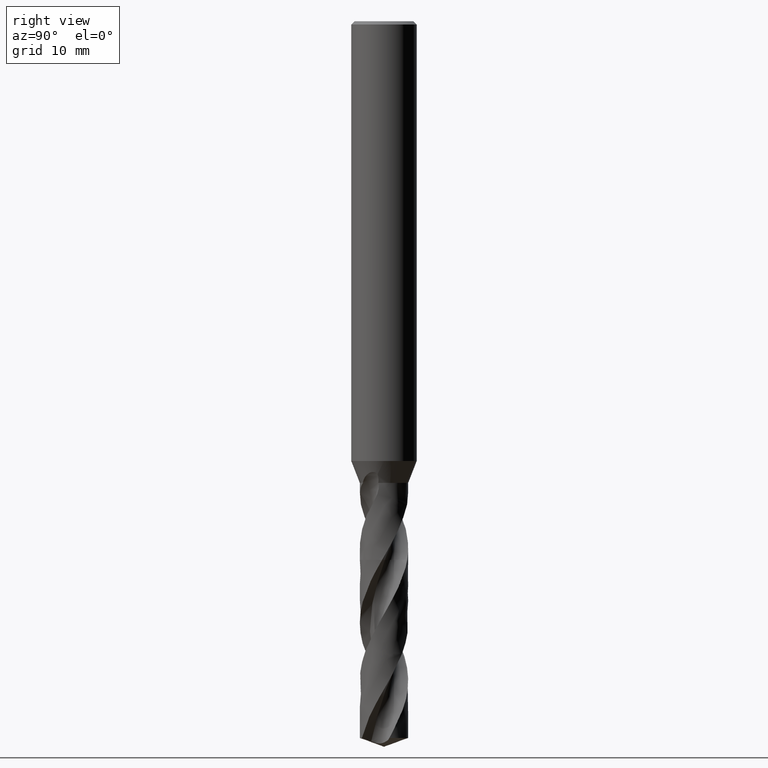
[diagram: clean part render]
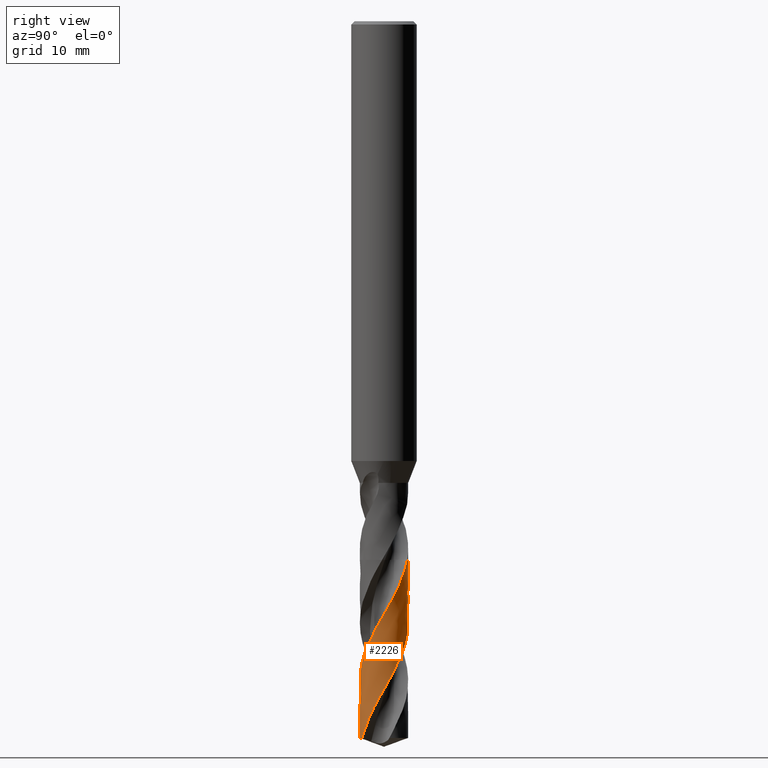
[diagram: same view with one face highlighted and labeled with its STEP entity id]
A machine part, right view. The second image highlights one B-rep face of the part: STEP entity #2226.
In plain terms, the highlighted face is a freeform B-spline surface patch.
Its self-contained STEP definition (entity closure, byte-faithful):
#1730 = EDGE_CURVE('', #1731, #1733, #1735, .T.);
#1731 = VERTEX_POINT('', #1732);
#1732 = CARTESIAN_POINT('', (-2.19297682412459, 0.175649221041361, -49.));
#1733 = VERTEX_POINT('', #1734);
#1734 = CARTESIAN_POINT('', (0.609180016935101, 2.11397722479855, -49.));
#1735 = CIRCLE('', #1736, 2.2);
#1736 = AXIS2_PLACEMENT_3D('', #1737, #1738, #1739);
#1737 = CARTESIAN_POINT('', (1.83720573376078E-31, 3.00038465791102E-15, -49.));
#1738 = DIRECTION('', (3.74939945665464E-33, 6.12323399573677E-17, -1.));
#1739 = DIRECTION('', (-1., 6.12323399573677E-17, 0.));
#1917 = EDGE_CURVE('', #1918, #1731, #1920, .T.);
#1918 = VERTEX_POINT('', #1919);
#1919 = CARTESIAN_POINT('', (0.903567698616241, -2.00588270195875, -65.1992654846144));
#1920 = B_SPLINE_CURVE_WITH_KNOTS('', 3, (#1921, #1922, #1923, #1924, #1925, #1926, #1927, #1928, #1929, #1930, #1931, #1932, #1933, #1934, #1935, #1936, #1937, #1938, #1939, #1940, #1941, #1942, #1943, #1944, #1945, #1946, #1947, #1948, #1949, #1950, #1951, #1952, #1953, #1954, #1955, #1956, #1957, #1958, #1959, #1960, #1961, #1962, #1963, #1964, #1965, #1966, #1967, #1968, #1969, #1970, #1971, #1972, #1973, #1974, #1975, #1976, #1977, #1978, #1979, #1980, #1981, #1982, #1983, #1984, #1985, #1986, #1987, #1988, #1989, #1990, #1991, #1992, #1993, #1994, #1995, #1996, #1997, #1998, #1999, #2000, #2001, #2002, #2003, #2004, #2005, #2006, #2007, #2008, #2009, #2010, #2011, #2012, #2013, #2014, #2015, #2016, #2017, #2018, #2019, #2020, #2021, #2022, #2023, #2024, #2025, #2026, #2027, #2028, #2029, #2030, #2031, #2032, #2033, #2034, #2035, #2036, #2037, #2038, #2039, #2040, #2041, #2042, #2043, #2044, #2045, #2046, #2047, #2048, #2049, #2050, #2051, #2052, #2053, #2054, #2055, #2056, #2057, #2058, #2059), .UNSPECIFIED., .F., .U., (4, 3, 3, 3, 3, 3, 3, 3, 3, 3, 3, 3, 3, 3, 3, 3, 3, 3, 3, 3, 3, 3, 3, 3, 3, 3, 3, 3, 3, 3, 3, 3, 3, 3, 3, 3, 3, 3, 3, 3, 3, 3, 3, 3, 3, 3, 4), (0., 0.443777261345855, 0.887415483092158, 1.33091698785798, 1.77428339848744, 2.21751568883007, 2.66061414246084, 3.10357838543293, 3.54640736915083, 3.9890993549716, 4.43165187915552, 4.87406170375263, 5.07090210876184, 5.12927742734828, 5.5736890981086, 6.01794046514453, 6.46203784014876, 6.90598642537663, 7.34979044807349, 7.79345326232231, 8.23697741573959, 8.68036470543608, 9.12361621707302, 9.56673234874368, 10.0097128207601, 10.452556671801, 10.8952622412894, 11.3378271372715, 11.7802481884226, 11.9770907668607, 12.0646260226333, 12.1522458401175, 12.5966447681384, 13.0408824244479, 13.4849650663384, 13.9288978413287, 14.3726849129753, 14.8163295583937, 15.2598342451416, 15.7032006863611, 16.1464298760782, 16.5895221116176, 17.0324769989092, 17.4752934613388, 17.917969653715, 18.360503183258, 18.657450452087), .UNSPECIFIED.);
#1921 = CARTESIAN_POINT('', (0.903567698616247, -2.00588270195875, -65.1992654846144));
#1922 = CARTESIAN_POINT('', (0.970238236946316, -1.9758503651598, -65.0706765010383));
#1923 = CARTESIAN_POINT('', (1.03543626537126, -1.94247796973273, -64.9420525050173));
#1924 = CARTESIAN_POINT('', (1.09879725166999, -1.90594978940225, -64.8134713785292));
#1925 = CARTESIAN_POINT('', (1.16213838637439, -1.86943305369501, -64.6849305377202));
#1926 = CARTESIAN_POINT('', (1.2236823297873, -1.82974019097609, -64.5563547660366));
#1927 = CARTESIAN_POINT('', (1.28308470864693, -1.78709082881548, -64.4278218582606));
#1928 = CARTESIAN_POINT('', (1.34246878134296, -1.74445461000395, -64.2993285607575));
#1929 = CARTESIAN_POINT('', (1.39974872185665, -1.69883779901167, -64.1708002159997));
#1930 = CARTESIAN_POINT('', (1.45460416580697, -1.65049287208912, -64.0423148430673));
#1931 = CARTESIAN_POINT('', (1.50944290034651, -1.60216267142135, -63.913868607816));
#1932 = CARTESIAN_POINT('', (1.5618916706565, -1.55107689541344, -63.7853872244103));
#1933 = CARTESIAN_POINT('', (1.61165717991845, -1.49751832523588, -63.6569488964036));
#1934 = CARTESIAN_POINT('', (1.66140763489524, -1.44397595676108, -63.5285494215553));
#1935 = CARTESIAN_POINT('', (1.70850623629578, -1.38793024347564, -63.4001147248579));
#1936 = CARTESIAN_POINT('', (1.75268953951592, -1.3296914597272, -63.2717231444577));
#1937 = CARTESIAN_POINT('', (1.79685950131633, -1.27147026153715, -63.1433703326836));
#1938 = CARTESIAN_POINT('', (1.83814223535632, -1.21102264166041, -63.0149822480254));
#1939 = CARTESIAN_POINT('', (1.87630665592476, -1.14868330401918, -62.886637315443));
#1940 = CARTESIAN_POINT('', (1.91445951682294, -1.08636284841986, -62.7583312574218));
#1941 = CARTESIAN_POINT('', (1.94951860833566, -1.02211481462777, -62.629989899754));
#1942 = CARTESIAN_POINT('', (1.98128740620527, -0.95629504548146, -62.5016917081175));
#1943 = CARTESIAN_POINT('', (2.01304650346367, -0.890495374419878, -62.3734326923693));
#1944 = CARTESIAN_POINT('', (2.04153614715973, -0.823085907676151, -62.245138370442));
#1945 = CARTESIAN_POINT('', (2.0665962564124, -0.75444013213926, -62.11688720859));
#1946 = CARTESIAN_POINT('', (2.09164861282504, -0.685815593529581, -61.9886757237695));
#1947 = CARTESIAN_POINT('', (2.11328841061231, -0.615914809345356, -61.8604289446181));
#1948 = CARTESIAN_POINT('', (2.13139355102244, -0.545125243095659, -61.7322253023063));
#1949 = CARTESIAN_POINT('', (2.14949298775462, -0.474357977743873, -61.6040620480982));
#1950 = CARTESIAN_POINT('', (2.16407073785406, -0.402660458072192, -61.4758635271464));
#1951 = CARTESIAN_POINT('', (2.17504386309857, -0.330430315796935, -61.3477081048893));
#1952 = CARTESIAN_POINT('', (2.1860134500954, -0.25822346389038, -61.2195940059212));
#1953 = CARTESIAN_POINT('', (2.19338726062267, -0.185441339708379, -61.0914446810448));
#1954 = CARTESIAN_POINT('', (2.19712231988703, -0.112487828031394, -60.9633384043763));
#1955 = CARTESIAN_POINT('', (2.19878415137777, -0.0800287866924747, -60.9063403677559));
#1956 = CARTESIAN_POINT('', (2.19972668004912, -0.0475295405072728, -60.8493397043756));
#1957 = CARTESIAN_POINT('', (2.19994868505564, -0.0150260813908295, -60.7923431861804));
#1958 = CARTESIAN_POINT('', (2.20001452323039, -0.00538680138124582, -60.7754402037474));
#1959 = CARTESIAN_POINT('', (2.20001700807897, 0.0042530730070858, -60.7585371947673));
#1960 = CARTESIAN_POINT('', (2.19995613484926, 0.0138926145524198, -60.7416343428736));
#1961 = CARTESIAN_POINT('', (2.19949270656526, 0.0872785054950486, -60.6129528241664));
#1962 = CARTESIAN_POINT('', (2.1953524993214, 0.160670918618598, -60.4842359234142));
#1963 = CARTESIAN_POINT('', (2.18755672207159, 0.233656987311829, -60.3555623183284));
#1964 = CARTESIAN_POINT('', (2.17976375683643, 0.306616729201761, -60.226935127096));
#1965 = CARTESIAN_POINT('', (2.16831303305806, 0.379215612567136, -60.0982725287815));
#1966 = CARTESIAN_POINT('', (2.1532668542966, 0.451045290616928, -59.96965325175));
#1967 = CARTESIAN_POINT('', (2.13822589103205, 0.52285007015457, -59.8410785583603));
#1968 = CARTESIAN_POINT('', (2.11958268992626, 0.593930478310302, -59.7124684076332));
#1969 = CARTESIAN_POINT('', (2.09743993462397, 0.663886828190332, -59.583901630355));
#1970 = CARTESIAN_POINT('', (2.0753045980001, 0.733819739990697, -59.4553779279137));
#1971 = CARTESIAN_POINT('', (2.04965847931811, 0.802672247715823, -59.3268186970075));
#1972 = CARTESIAN_POINT('', (2.0206435164238, 0.870057342670275, -59.1983029070214));
#1973 = CARTESIAN_POINT('', (1.99163800164266, 0.937420495084076, -59.0698289655026));
#1974 = CARTESIAN_POINT('', (1.95924815795736, 1.00335826085329, -58.9413194257492));
#1975 = CARTESIAN_POINT('', (1.92365368551834, 1.06750011624904, -58.8128533844839));
#1976 = CARTESIAN_POINT('', (1.88807053843907, 1.13162156315052, -58.6844282182205));
#1977 = CARTESIAN_POINT('', (1.84926321853348, 1.19398714191638, -58.555967403078));
#1978 = CARTESIAN_POINT('', (1.80744735283194, 1.25424641388398, -58.427550125595));
#1979 = CARTESIAN_POINT('', (1.76564455611551, 1.31448685262848, -58.2991729832009));
#1980 = CARTESIAN_POINT('', (1.7208098245953, 1.37265871742325, -58.170760158979));
#1981 = CARTESIAN_POINT('', (1.67319253723993, 1.42843506444102, -58.0423908946632));
#1982 = CARTESIAN_POINT('', (1.62558994373849, 1.48419419986314, -57.9140612428352));
#1983 = CARTESIAN_POINT('', (1.57517779664607, 1.53759292935784, -57.7856958923281));
#1984 = CARTESIAN_POINT('', (1.52223673003235, 1.5883309912422, -57.6573741086303));
#1985 = CARTESIAN_POINT('', (1.4693118755101, 1.63905351565909, -57.5290916207877));
#1986 = CARTESIAN_POINT('', (1.41382775408137, 1.68714756697826, -57.4007734318709));
#1987 = CARTESIAN_POINT('', (1.35609345711684, 1.7323424994974, -57.2724988029488));
#1988 = CARTESIAN_POINT('', (1.29837679363346, 1.7775236283672, -57.1442633522686));
#1989 = CARTESIAN_POINT('', (1.23837654057622, 1.81983463664879, -57.0159922108953));
#1990 = CARTESIAN_POINT('', (1.17642717191007, 1.8590371457267, -56.8877646106503));
#1991 = CARTESIAN_POINT('', (1.11449676899429, 1.89822765298738, -56.7595762671838));
#1992 = CARTESIAN_POINT('', (1.05058107717878, 1.93433520403072, -56.6313522544662));
#1993 = CARTESIAN_POINT('', (0.985036628460941, 1.96715602853214, -56.5031717536611));
#1994 = CARTESIAN_POINT('', (0.919512394508964, 1.9999667306617, -56.3750307854002));
#1995 = CARTESIAN_POINT('', (0.852320803022374, 2.0295125582767, -56.2468541786379));
#1996 = CARTESIAN_POINT('', (0.783836899495911, 2.05562635588005, -56.1187210459649));
#1997 = CARTESIAN_POINT('', (0.715374380618882, 2.08173199924016, -55.9906279238927));
#1998 = CARTESIAN_POINT('', (0.645578877654832, 2.10442356466225, -55.8624992015859));
#1999 = CARTESIAN_POINT('', (0.574840217597852, 2.1235721612962, -55.7344139087193));
#2000 = CARTESIAN_POINT('', (0.504124035359129, 2.1427146732987, -55.6063693160572));
#2001 = CARTESIAN_POINT('', (0.432422331337367, 2.15832809021509, -55.4782891671104));
#2002 = CARTESIAN_POINT('', (0.360135829467205, 2.17032305990015, -55.3502523979548));
#2003 = CARTESIAN_POINT('', (0.287872822546032, 2.18231413091543, -55.2222572440009));
#2004 = CARTESIAN_POINT('', (0.214981360140516, 2.19069640620092, -55.0942265815133));
#2005 = CARTESIAN_POINT('', (0.141869063030154, 2.1954209548412, -54.9662392460443));
#2006 = CARTESIAN_POINT('', (0.109339839926281, 2.19752300747611, -54.909294945913));
#2007 = CARTESIAN_POINT('', (0.0767604998190056, 2.19890212896822, -54.8523479798963));
#2008 = CARTESIAN_POINT('', (0.0441672677551821, 2.19955660360425, -54.7954052438798));
#2009 = CARTESIAN_POINT('', (0.0296731632387766, 2.19984764635077, -54.7700829939827));
#2010 = CARTESIAN_POINT('', (0.0151757480355256, 2.19999542619931, -54.7447605870103));
#2011 = CARTESIAN_POINT('', (0.000678210095645252, 2.19999989546161, -54.7194386304277));
#2012 = CARTESIAN_POINT('', (-0.0138333329055224, 2.20000436904135, -54.6940922120671));
#2013 = CARTESIAN_POINT('', (-0.0283453548753745, 2.19986525524478, -54.6687456358799));
#2014 = CARTESIAN_POINT('', (-0.0428546782402443, 2.19958256870547, -54.6433995228088));
#2015 = CARTESIAN_POINT('', (-0.116444511394406, 2.19814881092504, -54.5148465789466));
#2016 = CARTESIAN_POINT('', (-0.189992218502024, 2.19301675939221, -54.3862577520896));
#2017 = CARTESIAN_POINT('', (-0.263081551575363, 2.18421338179696, -54.257712707399));
#2018 = CARTESIAN_POINT('', (-0.336144360638212, 2.17541319893438, -54.1292143115144));
#2019 = CARTESIAN_POINT('', (-0.408794769699091, 2.16293885332771, -54.0006800530012));
#2020 = CARTESIAN_POINT('', (-0.48062151103036, 2.14685885962142, -53.8721895550505));
#2021 = CARTESIAN_POINT('', (-0.552423188793925, 2.13078447694527, -53.7437438931906));
#2022 = CARTESIAN_POINT('', (-0.623446625833209, 2.11109691872342, -53.6152623755772));
#2023 = CARTESIAN_POINT('', (-0.69328969200978, 2.08790550623179, -53.4868246114561));
#2024 = CARTESIAN_POINT('', (-0.763109187880186, 2.06472192026787, -53.3584301919015));
#2025 = CARTESIAN_POINT('', (-0.831792679051627, 2.03802237670326, -53.2299999080248));
#2026 = CARTESIAN_POINT('', (-0.898951240740696, 2.0079558428339, -53.1016133870523));
#2027 = CARTESIAN_POINT('', (-0.966087760292878, 1.97789917711297, -52.9732690038682));
#2028 = CARTESIAN_POINT('', (-1.0317421548499, 1.94445901710994, -52.8448887302388));
#2029 = CARTESIAN_POINT('', (-1.0955426397918, 1.90782240378869, -52.716552247537));
#2030 = CARTESIAN_POINT('', (-1.15932264900781, 1.8711975483914, -52.5882569523378));
#2031 = CARTESIAN_POINT('', (-1.22128951871036, 1.8313555656015, -52.4599257261368));
#2032 = CARTESIAN_POINT('', (-1.28109234082209, 1.78851961529277, -52.3316383292214));
#2033 = CARTESIAN_POINT('', (-1.34087629665522, 1.74569717864349, -52.2033914037367));
#2034 = CARTESIAN_POINT('', (-1.39853453336854, 1.69985618963428, -52.0751085070655));
#2035 = CARTESIAN_POINT('', (-1.45374049563841, 1.65125363628396, -51.946869472877));
#2036 = CARTESIAN_POINT('', (-1.50892924957283, 1.60266623291034, -51.8186704122751));
#2037 = CARTESIAN_POINT('', (-1.56170127519189, 1.55128903912252, -51.6904353511887));
#2038 = CARTESIAN_POINT('', (-1.61175757973478, 1.49741026581478, -51.5622441750922));
#2039 = CARTESIAN_POINT('', (-1.66179838851083, 1.44354817158307, -51.4340926827198));
#2040 = CARTESIAN_POINT('', (-1.70915593158548, 1.38715292184309, -51.3059051699347));
#2041 = CARTESIAN_POINT('', (-1.75356172114089, 1.3285410381879, -51.1777615564238));
#2042 = CARTESIAN_POINT('', (-1.7979537896722, 1.26994726512318, -51.0496575382367));
#2043 = CARTESIAN_POINT('', (-1.83942318747098, 1.20910224551621, -50.9215174915543));
#2044 = CARTESIAN_POINT('', (-1.87773456535649, 1.14634763578309, -50.7934213450553));
#2045 = CARTESIAN_POINT('', (-1.91603406760934, 1.0836124785138, -50.6653649053709));
#2046 = CARTESIAN_POINT('', (-1.95120100242828, 1.01893042716581, -50.537272428881));
#2047 = CARTESIAN_POINT('', (-1.98303549301869, 0.952664806439352, -50.409223858824));
#2048 = CARTESIAN_POINT('', (-2.01486003522588, 0.886419893937748, -50.2812153043672));
#2049 = CARTESIAN_POINT('', (-2.04337373943786, 0.81855174705035, -50.1531707434191));
#2050 = CARTESIAN_POINT('', (-2.06841411470274, 0.749441825693309, -50.0251700468983));
#2051 = CARTESIAN_POINT('', (-2.09344655797983, 0.68035379614288, -49.897209896893));
#2052 = CARTESIAN_POINT('', (-2.11502321583574, 0.609982448346422, -49.7692136767058));
#2053 = CARTESIAN_POINT('', (-2.13302070308146, 0.538723194438522, -49.6412613878701));
#2054 = CARTESIAN_POINT('', (-2.15101239021287, 0.467486905504166, -49.5133503346742));
#2055 = CARTESIAN_POINT('', (-2.16543828242418, 0.395319324928367, -49.3854034757369));
#2056 = CARTESIAN_POINT('', (-2.17621503270637, 0.322626922967145, -49.2575002953734));
#2057 = CARTESIAN_POINT('', (-2.18344640919994, 0.273849126967618, -49.1716751599928));
#2058 = CARTESIAN_POINT('', (-2.1890393615695, 0.224808358087234, -49.0858218834867));
#2059 = CARTESIAN_POINT('', (-2.19297682412459, 0.175649221041361, -49.));
#2226 = ADVANCED_FACE('', (#2227), #2397, .T.);
#2227 = FACE_OUTER_BOUND('', #2228, .T.);
#2228 = EDGE_LOOP('', (#2229, #2230, #2245, #2377, #2389, #2396));
#2229 = ORIENTED_EDGE('', *, *, #1730, .T.);
#2230 = ORIENTED_EDGE('', *, *, #2231, .T.);
#2231 = EDGE_CURVE('', #1733, #2232, #2234, .T.);
#2232 = VERTEX_POINT('', #2233);
#2233 = CARTESIAN_POINT('', (0.99526947530023, 1.96199864208302, -49.7205505730797));
#2234 = B_SPLINE_CURVE_WITH_KNOTS('', 3, (#2235, #2236, #2237, #2238, #2239, #2240, #2241, #2242, #2243, #2244), .UNSPECIFIED., .F., .U., (4, 3, 3, 4), (3.23393473255914, 3.36595693848951, 3.80991391146684, 4.06565514735163), .UNSPECIFIED.);
#2235 = CARTESIAN_POINT('', (0.609180016935101, 2.11397722479855, -49.));
#2236 = CARTESIAN_POINT('', (0.63030988295725, 2.1078882792838, -49.0381196134969));
#2237 = CARTESIAN_POINT('', (0.651352511066689, 2.10148123807506, -49.0762483103186));
#2238 = CARTESIAN_POINT('', (0.672289039988331, 2.09476190692679, -49.1143686956049));
#2239 = CARTESIAN_POINT('', (0.742693241608825, 2.07216651173554, -49.2425578191027));
#2240 = CARTESIAN_POINT('', (0.811971647772824, 2.04601242755648, -49.370792034064));
#2241 = CARTESIAN_POINT('', (0.879728421755591, 2.01645181047178, -49.498990881055));
#2242 = CARTESIAN_POINT('', (0.918759684181114, 1.99942342887872, -49.572839775349));
#2243 = CARTESIAN_POINT('', (0.957297729897546, 1.98126069370352, -49.6466981233364));
#2244 = CARTESIAN_POINT('', (0.995269475300252, 1.96199864208301, -49.7205505730797));
#2245 = ORIENTED_EDGE('', *, *, #2246, .T.);
#2246 = EDGE_CURVE('', #2232, #2247, #2249, .T.);
#2247 = VERTEX_POINT('', #2248);
#2248 = CARTESIAN_POINT('', (-2.03778709982184, -0.829110207270224, -64.5628445858137));
#2249 = B_SPLINE_CURVE_WITH_KNOTS('', 3, (#2250, #2251, #2252, #2253, #2254, #2255, #2256, #2257, #2258, #2259, #2260, #2261, #2262, #2263, #2264, #2265, #2266, #2267, #2268, #2269, #2270, #2271, #2272, #2273, #2274, #2275, #2276, #2277, #2278, #2279, #2280, #2281, #2282, #2283, #2284, #2285, #2286, #2287, #2288, #2289, #2290, #2291, #2292, #2293, #2294, #2295, #2296, #2297, #2298, #2299, #2300, #2301, #2302, #2303, #2304, #2305, #2306, #2307, #2308, #2309, #2310, #2311, #2312, #2313, #2314, #2315, #2316, #2317, #2318, #2319, #2320, #2321, #2322, #2323, #2324, #2325, #2326, #2327, #2328, #2329, #2330, #2331, #2332, #2333, #2334, #2335, #2336, #2337, #2338, #2339, #2340, #2341, #2342, #2343, #2344, #2345, #2346, #2347, #2348, #2349, #2350, #2351, #2352, #2353, #2354, #2355, #2356, #2357, #2358, #2359, #2360, #2361, #2362, #2363, #2364, #2365, #2366, #2367, #2368, #2369, #2370, #2371, #2372, #2373, #2374, #2375, #2376), .UNSPECIFIED., .F., .U., (4, 3, 3, 3, 3, 3, 3, 3, 3, 3, 3, 3, 3, 3, 3, 3, 3, 3, 3, 3, 3, 3, 3, 3, 3, 3, 3, 3, 3, 3, 3, 3, 3, 3, 3, 3, 3, 3, 3, 3, 3, 3, 4), (0., 0.443720295302688, 0.887296893292586, 1.33073244573005, 1.77402883778635, 2.21718721941835, 2.66020803536908, 3.10309102834764, 3.54583523444944, 3.98843896123996, 4.43089975150378, 4.72601914371159, 4.85728969516979, 4.94490808933143, 5.38931144859587, 5.83355132499772, 6.27763458019507, 6.72156692140049, 7.1653530380898, 7.60899671401454, 8.05250091460264, 8.49586783833342, 8.93909896062836, 9.38219506249941, 9.82515624486184, 10.2679819291247, 10.7106708440786, 11.1532209985081, 11.5956296383233, 11.7924701319314, 11.8508466099838, 12.2952550027968, 12.7395022291705, 13.1835951381074, 13.6275394432955, 14.0713398567299, 14.5150001952366, 14.9585234629412, 15.4019119133857, 15.8451670956228, 16.2882898804671, 16.731280489481, 17.0944966591564), .UNSPECIFIED.);
#2250 = CARTESIAN_POINT('', (0.99526947530023, 1.96199864208302, -49.7205505730797));
#2251 = CARTESIAN_POINT('', (1.06115182714293, 1.92857828574658, -49.8486872448823));
#2252 = CARTESIAN_POINT('', (1.12535841982662, 1.89183038964397, -49.9768714989908));
#2253 = CARTESIAN_POINT('', (1.18752544916636, 1.85196741536731, -50.1050222497007));
#2254 = CARTESIAN_POINT('', (1.24967234592448, 1.81211735057967, -50.2331314992245));
#2255 = CARTESIAN_POINT('', (1.30981989827641, 1.76912930136434, -50.3612882688113));
#2256 = CARTESIAN_POINT('', (1.36762824540866, 1.72325070212098, -50.4894116210431));
#2257 = CARTESIAN_POINT('', (1.42541821102508, 1.67738669105112, -50.6174942334589));
#2258 = CARTESIAN_POINT('', (1.48090648241184, 1.62860540736067, -50.7456243367674));
#2259 = CARTESIAN_POINT('', (1.5337806008106, 1.57718644065218, -50.8737210217628));
#2260 = CARTESIAN_POINT('', (1.58663812608228, 1.52578361041035, -51.0017775070416));
#2261 = CARTESIAN_POINT('', (1.63691586602593, 1.47171295305819, -51.1298814344729));
#2262 = CARTESIAN_POINT('', (1.68433169043301, 1.41528327786457, -51.257951976402));
#2263 = CARTESIAN_POINT('', (1.73173275298288, 1.35887117078916, -51.3859826464302));
#2264 = CARTESIAN_POINT('', (1.77630287282927, 1.30006680410326, -51.5140607097321));
#2265 = CARTESIAN_POINT('', (1.81779292556518, 1.23920493856553, -51.6421054201682));
#2266 = CARTESIAN_POINT('', (1.85927009891618, 1.17836196583079, -51.7701103828333));
#2267 = CARTESIAN_POINT('', (1.89769453465921, 1.11542551760371, -51.8981626769792));
#2268 = CARTESIAN_POINT('', (1.93285241856596, 1.05075283870362, -52.0261816658456));
#2269 = CARTESIAN_POINT('', (1.96799936491882, 0.986100279356609, -52.1541608282368));
#2270 = CARTESIAN_POINT('', (1.99990324753802, 0.919673134646042, -52.2821872470736));
#2271 = CARTESIAN_POINT('', (2.02838750968854, 0.851847469057423, -52.4101804233433));
#2272 = CARTESIAN_POINT('', (2.0568628456851, 0.784043058094608, -52.5381334902083));
#2273 = CARTESIAN_POINT('', (2.0819380428206, 0.714799751709951, -52.6661337203711));
#2274 = CARTESIAN_POINT('', (2.10347537048493, 0.644508623498039, -52.7941007905027));
#2275 = CARTESIAN_POINT('', (2.12500586452181, 0.574239798117298, -52.9220272576731));
#2276 = CARTESIAN_POINT('', (2.14301383107001, 0.502881108339595, -53.0500007734346));
#2277 = CARTESIAN_POINT('', (2.15740155013487, 0.430834714798751, -53.1779412350346));
#2278 = CARTESIAN_POINT('', (2.17178462276216, 0.358811588258682, -53.3058403789408));
#2279 = CARTESIAN_POINT('', (2.18255854318884, 0.286057391033683, -53.4337864311338));
#2280 = CARTESIAN_POINT('', (2.18966639765514, 0.212981377073535, -53.5616995623414));
#2281 = CARTESIAN_POINT('', (2.19440730517995, 0.164239998629515, -53.647017055706));
#2282 = CARTESIAN_POINT('', (2.19751998352631, 0.115338835215746, -53.7323493851693));
#2283 = CARTESIAN_POINT('', (2.19899771423924, 0.0664006985703094, -53.8176731681633));
#2284 = CARTESIAN_POINT('', (2.19965501609982, 0.0446327756401236, -53.8556256048443));
#2285 = CARTESIAN_POINT('', (2.19998904641857, 0.0228555959073329, -53.8935797078709));
#2286 = CARTESIAN_POINT('', (2.19999973497597, 0.00107986373329582, -53.9315333551067));
#2287 = CARTESIAN_POINT('', (2.20000686920542, -0.0134546580127396, -53.9568660560547));
#2288 = CARTESIAN_POINT('', (2.19986996041266, -0.0279889773774207, -53.9821993230345));
#2289 = CARTESIAN_POINT('', (2.19958906642284, -0.0425198644529941, -54.0075325527925));
#2290 = CARTESIAN_POINT('', (2.19816436292458, -0.116220998687018, -54.1360235222194));
#2291 = CARTESIAN_POINT('', (2.19303060525618, -0.189860556875673, -54.2645619361968));
#2292 = CARTESIAN_POINT('', (2.18422051087443, -0.263022356227489, -54.39306699269));
#2293 = CARTESIAN_POINT('', (2.17541365746604, -0.336157241515447, -54.5215247759705));
#2294 = CARTESIAN_POINT('', (2.16292781151904, -0.408859311740454, -54.6500298639397));
#2295 = CARTESIAN_POINT('', (2.14683714105469, -0.48071851409028, -54.7785017268516));
#2296 = CARTESIAN_POINT('', (2.13075214351689, -0.552552381760749, -54.9069282957253));
#2297 = CARTESIAN_POINT('', (2.11105504012248, -0.623587871926523, -55.0354020064542));
#2298 = CARTESIAN_POINT('', (2.08786055378847, -0.6934250557447, -55.1638426497219));
#2299 = CARTESIAN_POINT('', (2.06467394969834, -0.76323850660724, -55.2922396446647));
#2300 = CARTESIAN_POINT('', (2.03797811106798, -0.831897314404284, -55.4206835918256));
#2301 = CARTESIAN_POINT('', (2.00792705311181, -0.899015544571871, -55.5490946580768));
#2302 = CARTESIAN_POINT('', (1.97788589351402, -0.966111667022092, -55.677463427689));
#2303 = CARTESIAN_POINT('', (1.94447316615538, -1.03170967641801, -55.8058789371796));
#2304 = CARTESIAN_POINT('', (1.90788054559254, -1.0954413830733, -55.9342617694303));
#2305 = CARTESIAN_POINT('', (1.87129967005879, -1.15915263394442, -56.0626033950094));
#2306 = CARTESIAN_POINT('', (1.83151818660524, -1.22103841550271, -56.1909915555418));
#2307 = CARTESIAN_POINT('', (1.78876338116645, -1.28075195342345, -56.3193472207831));
#2308 = CARTESIAN_POINT('', (1.7460220172376, -1.34044671824709, -56.4476625328073));
#2309 = CARTESIAN_POINT('', (1.70028248796892, -1.39800792292335, -56.5760242127115));
#2310 = CARTESIAN_POINT('', (1.65180523863677, -1.45311370980117, -56.7043535429033));
#2311 = CARTESIAN_POINT('', (1.60334299435854, -1.50820243990876, -56.8326431516062));
#2312 = CARTESIAN_POINT('', (1.5521143730607, -1.56087178790551, -56.9609789961342));
#2313 = CARTESIAN_POINT('', (1.49841018415686, -1.61082802310333, -57.0892826035096));
#2314 = CARTESIAN_POINT('', (1.44472244462164, -1.6607689569151, -57.2175469120262));
#2315 = CARTESIAN_POINT('', (1.38852703769952, -1.70802972721797, -57.3458573553269));
#2316 = CARTESIAN_POINT('', (1.33014203667815, -1.75234761456216, -57.4741356450049));
#2317 = CARTESIAN_POINT('', (1.27177482133832, -1.7966520014556, -57.6023748575781));
#2318 = CARTESIAN_POINT('', (1.21118288379507, -1.83804299472308, -57.7306601308078));
#2319 = CARTESIAN_POINT('', (1.14870819571659, -1.87629141688959, -57.8589133090031));
#2320 = CARTESIAN_POINT('', (1.08625253072178, -1.91452819269246, -57.9871274350476));
#2321 = CARTESIAN_POINT('', (1.02187640511149, -1.9496481210457, -58.1153875703304));
#2322 = CARTESIAN_POINT('', (0.955942100249925, -1.98145772121682, -58.2436156484197));
#2323 = CARTESIAN_POINT('', (0.890027964137583, -2.01325759109883, -58.3718045026185));
#2324 = CARTESIAN_POINT('', (0.822515823131189, -2.04176885360586, -58.5000393330307));
#2325 = CARTESIAN_POINT('', (0.753784499996336, -2.06683548633298, -58.6282421276516));
#2326 = CARTESIAN_POINT('', (0.685074404933626, -2.09189437708361, -58.7564053260878));
#2327 = CARTESIAN_POINT('', (0.615103661676716, -2.11352618615159, -58.8846144816671));
#2328 = CARTESIAN_POINT('', (0.544263730946013, -2.13161370589907, -59.0127916108517));
#2329 = CARTESIAN_POINT('', (0.473446004941017, -2.1496955561264, -59.1409285630067));
#2330 = CARTESIAN_POINT('', (0.401716458253489, -2.16424638673419, -59.2691114626172));
#2331 = CARTESIAN_POINT('', (0.329475195645339, -2.1751887493858, -59.3972623377922));
#2332 = CARTESIAN_POINT('', (0.257257033683112, -2.18612761298941, -59.5253722340601));
#2333 = CARTESIAN_POINT('', (0.184483817323248, -2.19346695364572, -59.6535280727577));
#2334 = CARTESIAN_POINT('', (0.111560255277026, -2.1971696132622, -59.7816518862592));
#2335 = CARTESIAN_POINT('', (0.0791144378652413, -2.19881703440405, -59.838657903825));
#2336 = CARTESIAN_POINT('', (0.0466327214862859, -2.19974555659911, -59.8956688023645));
#2337 = CARTESIAN_POINT('', (0.0141507135794833, -2.19995448982591, -59.9526776316096));
#2338 = CARTESIAN_POINT('', (0.00451760818072626, -2.20001645261469, -59.9695845932222));
#2339 = CARTESIAN_POINT('', (-0.00511575001858363, -2.20001514129462, -59.986491761067));
#2340 = CARTESIAN_POINT('', (-0.0147484367463142, -2.19995056390218, -60.0033989514351));
#2341 = CARTESIAN_POINT('', (-0.0880801444813489, -2.19945894919466, -60.1321099930936));
#2342 = CARTESIAN_POINT('', (-0.161397106688595, -2.19529613470759, -60.2608674815024));
#2343 = CARTESIAN_POINT('', (-0.234288780080952, -2.18748914683666, -60.3895926467951));
#2344 = CARTESIAN_POINT('', (-0.307154019023286, -2.17968499020036, -60.5182711294038));
#2345 = CARTESIAN_POINT('', (-0.379638828022227, -2.16823452969861, -60.646995826089));
#2346 = CARTESIAN_POINT('', (-0.451337820387841, -2.15320555727703, -60.7756884221274));
#2347 = CARTESIAN_POINT('', (-0.523011906791042, -2.13818180544516, -60.904336314428));
#2348 = CARTESIAN_POINT('', (-0.593944879610792, -2.11957277308065, -61.0330302156616));
#2349 = CARTESIAN_POINT('', (-0.663740611085406, -2.09748621001341, -61.1616922052856));
#2350 = CARTESIAN_POINT('', (-0.733512987295536, -2.07540703762052, -61.2903111416351));
#2351 = CARTESIAN_POINT('', (-0.802192080573507, -2.04983899788231, -61.4189759221079));
#2352 = CARTESIAN_POINT('', (-0.869395043031637, -2.02092856359451, -61.5476089417777));
#2353 = CARTESIAN_POINT('', (-0.936576223586014, -1.9920274997909, -61.6762002687609));
#2354 = CARTESIAN_POINT('', (-1.00232391371134, -1.95976828614655, -61.8048373117139));
#2355 = CARTESIAN_POINT('', (-1.06627239678846, -1.92433447608441, -61.9334427101292));
#2356 = CARTESIAN_POINT('', (-1.13020069606476, -1.88891184985227, -62.0620075173433));
#2357 = CARTESIAN_POINT('', (-1.19237057744779, -1.8502946738487, -62.190617945229));
#2358 = CARTESIAN_POINT('', (-1.25243709586529, -1.80870155661472, -62.319196814082));
#2359 = CARTESIAN_POINT('', (-1.31248505646922, -1.76712128975622, -62.447735957931));
#2360 = CARTESIAN_POINT('', (-1.37046810750526, -1.72254121265566, -62.5763206559407));
#2361 = CARTESIAN_POINT('', (-1.42606546614754, -1.67521260927125, -62.7048738538));
#2362 = CARTESIAN_POINT('', (-1.48164592492433, -1.62789839230825, -62.8333879754908));
#2363 = CARTESIAN_POINT('', (-1.53487637953063, -1.57780819843333, -62.9619476097216));
#2364 = CARTESIAN_POINT('', (-1.5854633177953, -1.52522328461295, -63.0904757798405));
#2365 = CARTESIAN_POINT('', (-1.63603505126478, -1.4726541761145, -63.2189653185544));
#2366 = CARTESIAN_POINT('', (-1.6839958219648, -1.41755968956802, -63.3475003481821));
#2367 = CARTESIAN_POINT('', (-1.7290821824824, -1.36024806789861, -63.476003932063));
#2368 = CARTESIAN_POINT('', (-1.77415507600215, -1.30295356483174, -63.6044691327729));
#2369 = CARTESIAN_POINT('', (-1.81638267082069, -1.2434084648696, -63.7329798194283));
#2370 = CARTESIAN_POINT('', (-1.85553404442012, -1.18194475759144, -63.8614590638153));
#2371 = CARTESIAN_POINT('', (-1.89467373984481, -1.12049938386964, -63.9898999850752));
#2372 = CARTESIAN_POINT('', (-1.93076263678849, -1.05709956092902, -64.1183863990766));
#2373 = CARTESIAN_POINT('', (-1.96360443827344, -0.992097580882464, -64.2468413663962));
#2374 = CARTESIAN_POINT('', (-1.99053203695811, -0.938801258718033, -64.3521639629846));
#2375 = CARTESIAN_POINT('', (-2.01528954344847, -0.88440470220367, -64.4575126264349));
#2376 = CARTESIAN_POINT('', (-2.03778709982184, -0.829110207270224, -64.5628445858137));
#2377 = ORIENTED_EDGE('', *, *, #2378, .T.);
#2378 = EDGE_CURVE('', #2247, #2379, #2381, .T.);
#2379 = VERTEX_POINT('', #2380);
#2380 = CARTESIAN_POINT('', (-2.14576266282893, -0.485492116114467, -65.1992654846144));
#2381 = B_SPLINE_CURVE_WITH_KNOTS('', 3, (#2382, #2383, #2384, #2385, #2386, #2387, #2388), .UNSPECIFIED., .F., .U., (4, 3, 4), (0., 0.442750760719499, 0.73141783352967), .UNSPECIFIED.);
#2382 = CARTESIAN_POINT('', (-2.03778709982183, -0.829110207270251, -64.5628445858137));
#2383 = CARTESIAN_POINT('', (-2.06521101712029, -0.761707702262659, -64.6912414167828));
#2384 = CARTESIAN_POINT('', (-2.08929114303738, -0.692932198530449, -64.8196822993555));
#2385 = CARTESIAN_POINT('', (-2.10989788075362, -0.623162043766251, -64.9480894759037));
#2386 = CARTESIAN_POINT('', (-2.12333317479366, -0.577672915046145, -65.031809092154));
#2387 = CARTESIAN_POINT('', (-2.13529717049542, -0.531747167333588, -65.1155416181861));
#2388 = CARTESIAN_POINT('', (-2.14576266282893, -0.485492116114468, -65.1992654846144));
#2389 = ORIENTED_EDGE('', *, *, #2390, .F.);
#2390 = EDGE_CURVE('', #1918, #2379, #2391, .T.);
#2391 = CIRCLE('', #2392, 2.20000000000001);
#2392 = AXIS2_PLACEMENT_3D('', #2393, #2394, #2395);
#2393 = CARTESIAN_POINT('', (2.44458090582295E-31, 3.99230358912457E-15, -65.1992654846144));
#2394 = DIRECTION('', (3.74939945665464E-33, 6.12323399573677E-17, -1.));
#2395 = DIRECTION('', (-1., 6.12323399573677E-17, 0.));
#2396 = ORIENTED_EDGE('', *, *, #1917, .T.);
#2397 = (
   BOUNDED_SURFACE ()
   B_SPLINE_SURFACE (2, 1, ((#2398, #2399), (#2400, #2401), (#2402, #2403), (#2404, #2405), (#2406, #2407), (#2408, #2409), (#2410, #2411), (#2412, #2413), (#2414, #2415)), .UNSPECIFIED., .F., .F., .U.)
   B_SPLINE_SURFACE_WITH_KNOTS ((3, 2, 2, 2, 3), (2, 2), (0.192225508810294, 3.45575191894877, 6.91150383789755, 10.3672557568463, 13.3011787519738), (0.30173369086372, 1.), .UNSPECIFIED.)
   GEOMETRIC_REPRESENTATION_ITEM ()
   RATIONAL_B_SPLINE_SURFACE (((0.969228239224775, 0.969228239224775), (0.72339890785941, 0.72339890785941), (1., 1.), (0.707106781186548, 0.707106781186548), (1., 1.), (0.707106781186548, 0.707106781186548), (1., 1.), (0.751334537331286, 0.751334537331286), (0.924901535862904, 0.924901535862904)))
   REPRESENTATION_ITEM ('')
   SURFACE ()
);
#2398 = CARTESIAN_POINT('', (-2.19297682412459, 0.17564922104136, -49.));
#2399 = CARTESIAN_POINT('', (-2.19297682412459, 0.175649221041361, -65.1992654846144));
#2400 = CARTESIAN_POINT('', (-2.03083391703733, 2.2, -49.));
#2401 = CARTESIAN_POINT('', (-2.03083391703733, 2.2, -65.1992654846144));
#2402 = CARTESIAN_POINT('', (1.97215226305253E-31, 2.2, -49.));
#2403 = CARTESIAN_POINT('', (2.2186712959341E-31, 2.2, -65.1992654846144));
#2404 = CARTESIAN_POINT('', (2.2, 2.2, -49.));
#2405 = CARTESIAN_POINT('', (2.2, 2.2, -65.1992654846144));
#2406 = CARTESIAN_POINT('', (2.2, 3.13509580581722E-15, -49.));
#2407 = CARTESIAN_POINT('', (2.2, 4.12701473703078E-15, -65.1992654846144));
#2408 = CARTESIAN_POINT('', (2.2, -2.2, -49.));
#2409 = CARTESIAN_POINT('', (2.2, -2.2, -65.1992654846144));
#2410 = CARTESIAN_POINT('', (2.69422295812418E-16, -2.2, -49.));
#2411 = CARTESIAN_POINT('', (2.69422295812418E-16, -2.2, -65.1992654846144));
#2412 = CARTESIAN_POINT('', (-1.75784461622393, -2.2, -49.));
#2413 = CARTESIAN_POINT('', (-1.75784461622393, -2.2, -65.1992654846144));
#2414 = CARTESIAN_POINT('', (-2.14576266282893, -0.485492116114469, -49.));
#2415 = CARTESIAN_POINT('', (-2.14576266282893, -0.485492116114468, -65.1992654846144));